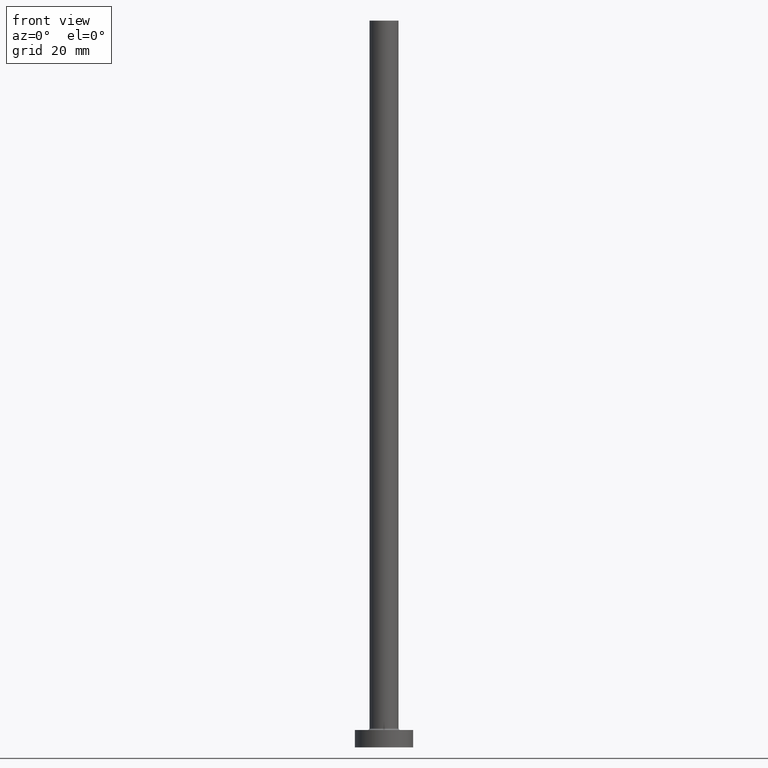
[diagram: clean part render]
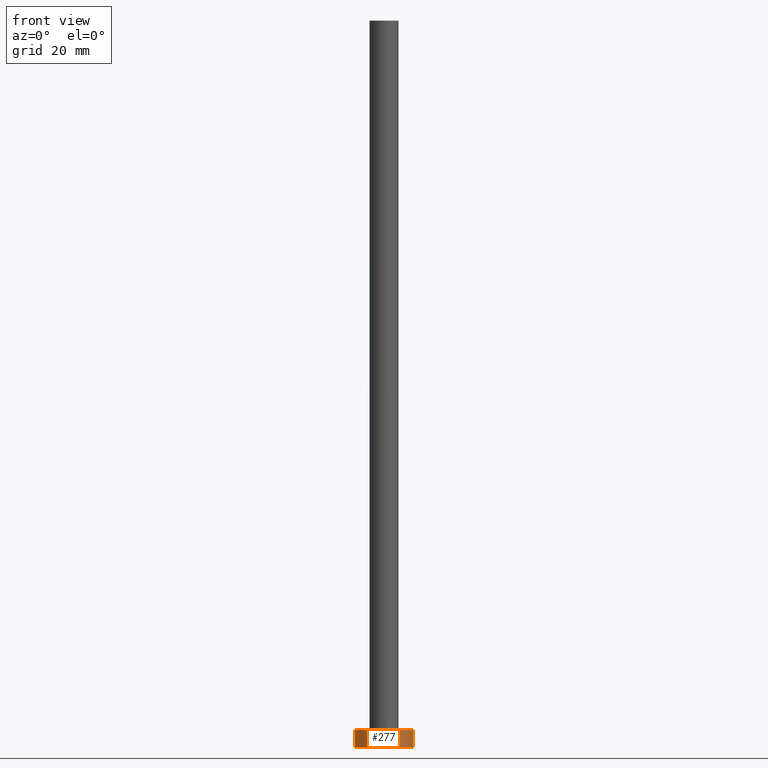
[diagram: same view with one face highlighted and labeled with its STEP entity id]
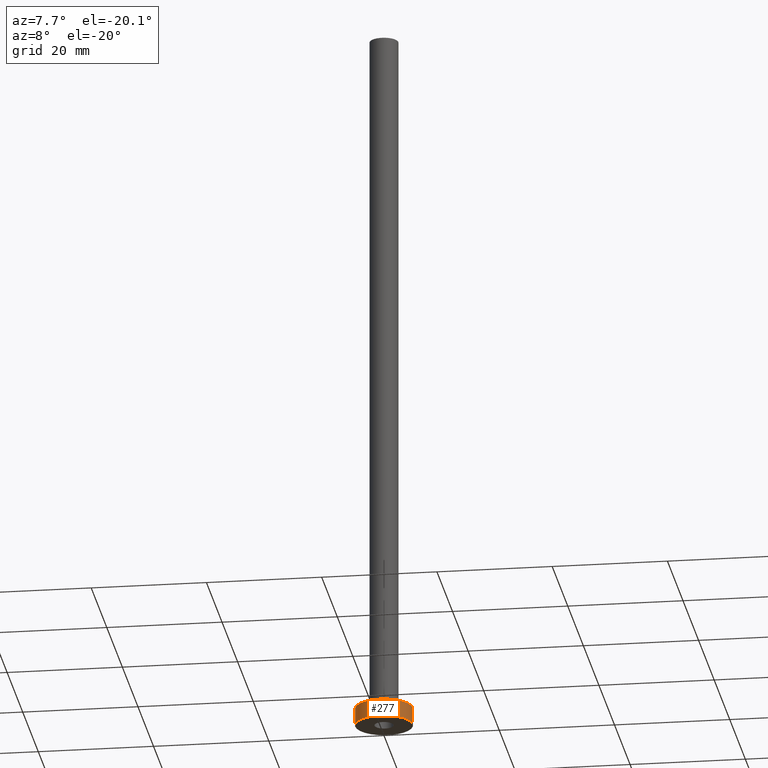
[diagram: same view with one face highlighted and labeled with its STEP entity id]
A machine part, front view. The second image highlights one B-rep face of the part: STEP entity #277.
A second angle (auxiliary view) of the same face is appended — the face is thin or edge-on in the first view.
In plain terms, the highlighted cylindrical surface (edge-blend (fillet) strip) has radius 5 mm, axis along (-0, -0, -1).
Its self-contained STEP definition (entity closure, byte-faithful):
#18 = LINE ( 'NONE', #425, #142 ) ;
#25 = DIRECTION ( 'NONE',  ( -0.000000000000000000, -0.000000000000000000, -1.000000000000000000 ) ) ;
#58 = ORIENTED_EDGE ( 'NONE', *, *, #361, .T. ) ;
#67 = CARTESIAN_POINT ( 'NONE',  ( -5.000000000000000000, 0.000000000000000000, 3.000000000000000000 ) ) ;
#89 = DIRECTION ( 'NONE',  ( 0.000000000000000000, 0.000000000000000000, 1.000000000000000000 ) ) ;
#93 = AXIS2_PLACEMENT_3D ( 'NONE', #290, #356, #391 ) ;
#106 = AXIS2_PLACEMENT_3D ( 'NONE', #442, #328, #332 ) ;
#116 = AXIS2_PLACEMENT_3D ( 'NONE', #268, #89, #283 ) ;
#128 = EDGE_CURVE ( 'NONE', #129, #378, #414, .T. ) ;
#129 = VERTEX_POINT ( 'NONE', #67 ) ;
#142 = VECTOR ( 'NONE', #25, 1000.000000000000000 ) ;
#154 = ORIENTED_EDGE ( 'NONE', *, *, #388, .T. ) ;
#157 = FACE_OUTER_BOUND ( 'NONE', #206, .T. ) ;
#164 = VERTEX_POINT ( 'NONE', #366 ) ;
#201 = LINE ( 'NONE', #374, #347 ) ;
#206 = EDGE_LOOP ( 'NONE', ( #416, #276, #154, #58 ) ) ;
#231 = CYLINDRICAL_SURFACE ( 'NONE', #106, 5.000000000000000000 ) ;
#268 = CARTESIAN_POINT ( 'NONE',  ( 0.000000000000000000, 0.000000000000000000, 0.000000000000000000 ) ) ;
#269 = VERTEX_POINT ( 'NONE', #299 ) ;
#276 = ORIENTED_EDGE ( 'NONE', *, *, #128, .F. ) ;
#277 = ADVANCED_FACE ( 'NONE', ( #157 ), #231, .T. ) ;
#283 = DIRECTION ( 'NONE',  ( 1.000000000000000000, 0.000000000000000000, 0.000000000000000000 ) ) ;
#287 = CIRCLE ( 'NONE', #116, 5.000000000000000000 ) ;
#290 = CARTESIAN_POINT ( 'NONE',  ( 0.000000000000000000, 0.000000000000000000, 3.000000000000000000 ) ) ;
#299 = CARTESIAN_POINT ( 'NONE',  ( 5.000000000000000000, 6.123233995736766282E-16, 0.000000000000000000 ) ) ;
#328 = DIRECTION ( 'NONE',  ( -0.000000000000000000, -0.000000000000000000, -1.000000000000000000 ) ) ;
#331 = EDGE_CURVE ( 'NONE', #378, #269, #201, .T. ) ;
#332 = DIRECTION ( 'NONE',  ( -1.000000000000000000, 0.000000000000000000, 0.000000000000000000 ) ) ;
#343 = DIRECTION ( 'NONE',  ( -0.000000000000000000, -0.000000000000000000, -1.000000000000000000 ) ) ;
#347 = VECTOR ( 'NONE', #343, 1000.000000000000000 ) ;
#356 = DIRECTION ( 'NONE',  ( 0.000000000000000000, 0.000000000000000000, 1.000000000000000000 ) ) ;
#361 = EDGE_CURVE ( 'NONE', #164, #269, #287, .T. ) ;
#366 = CARTESIAN_POINT ( 'NONE',  ( -5.000000000000000000, 0.000000000000000000, 0.000000000000000000 ) ) ;
#374 = CARTESIAN_POINT ( 'NONE',  ( 5.000000000000000000, 6.123233995736766282E-16, 3.000000000000000000 ) ) ;
#378 = VERTEX_POINT ( 'NONE', #417 ) ;
#388 = EDGE_CURVE ( 'NONE', #129, #164, #18, .T. ) ;
#391 = DIRECTION ( 'NONE',  ( 1.000000000000000000, 0.000000000000000000, 0.000000000000000000 ) ) ;
#414 = CIRCLE ( 'NONE', #93, 5.000000000000000000 ) ;
#416 = ORIENTED_EDGE ( 'NONE', *, *, #331, .F. ) ;
#417 = CARTESIAN_POINT ( 'NONE',  ( 5.000000000000000000, 6.123233995736766282E-16, 3.000000000000000000 ) ) ;
#425 = CARTESIAN_POINT ( 'NONE',  ( -5.000000000000000000, 0.000000000000000000, 3.000000000000000000 ) ) ;
#442 = CARTESIAN_POINT ( 'NONE',  ( 0.000000000000000000, 0.000000000000000000, 3.000000000000000000 ) ) ;